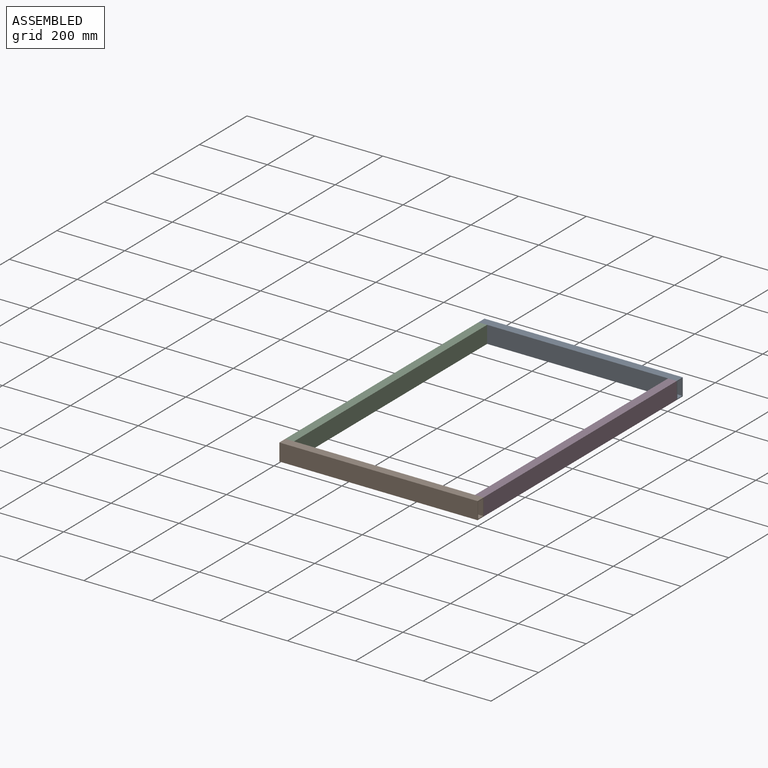
[diagram: assembled view]
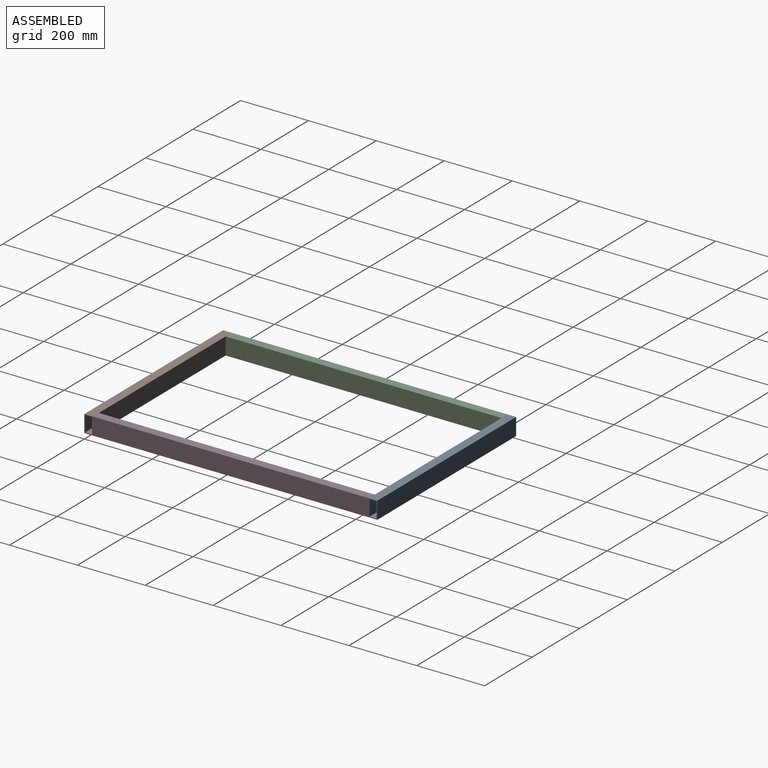
[diagram: assembled view, second angle]
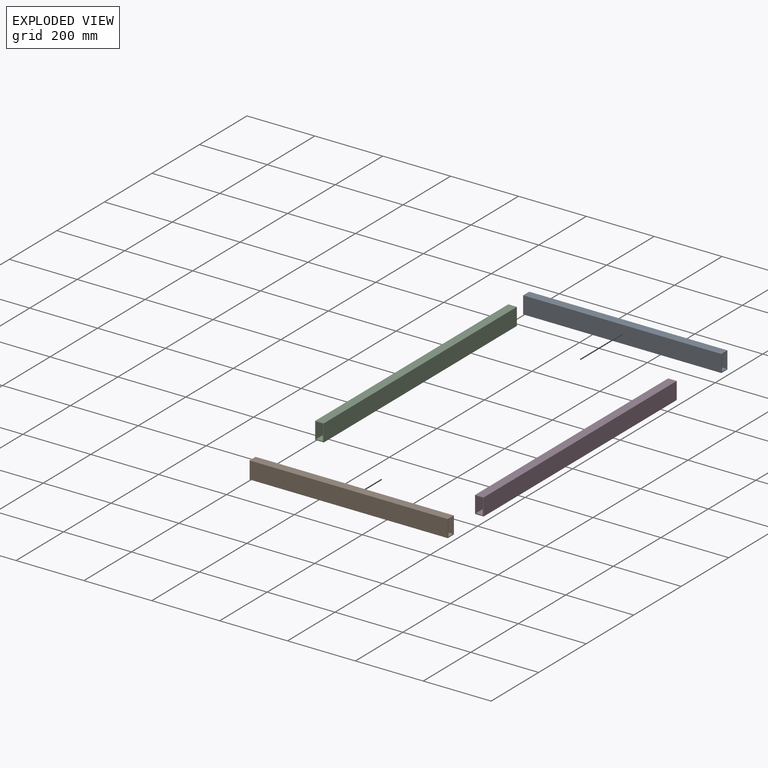
[diagram: exploded view]
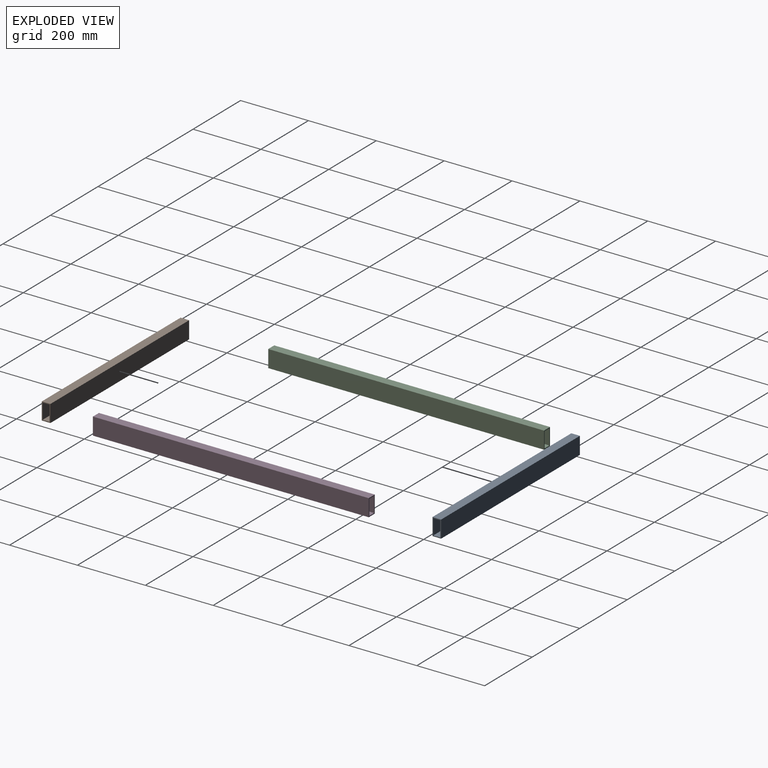
[diagram: exploded view, second angle]
ASSEMBLY  parts=4 mates=9
PART A: 10 faces, bbox 25.4x584.2x50.8 mm
  f0: plane 584.2x25.4mm, normal (0,0,-1), area 14838.7mm2, adj f1,f7,f8,f9
  f1: plane 584.2x50.8mm, normal (1,0,0), area 29677.4mm2, adj f0,f2,f8,f9
  f2: plane 584.2x25.4mm, normal (0,0,1), area 14838.7mm2, adj f1,f7,f8,f9
  f3: plane 584.2x20.32mm, normal (0,0,1), area 11870.9mm2, adj f4,f6,f8,f9
  f4: plane 584.2x45.72mm, normal (1,0,0), area 26709.6mm2, adj f3,f5,f8,f9
  f5: plane 584.2x20.32mm, normal (0,0,-1), area 11870.9mm2, adj f4,f6,f8,f9
  f6: plane 584.2x45.72mm, normal (-1,0,0), area 26709.6mm2, adj f3,f5,f8,f9
  f7: plane 584.2x50.8mm, normal (-1,0,0), area 29677.4mm2, adj f0,f2,f8,f9
  f8: plane 50.8x25.4mm, normal (0,-1,0), area 361.3mm2, adj f0,f1,f2,f3,f4,f5,f6,f7
  f9: plane 50.8x25.4mm, normal (0,1,0), area 361.3mm2, adj f0,f1,f2,f3,f4,f5,f6,f7
PART B: same geometry as A
PART C: 10 faces, bbox 25.4x812.8x50.8 mm
  f0: plane 812.8x25.4mm, normal (0,0,-1), area 20645.1mm2, adj f1,f7,f8,f9
  f1: plane 812.8x50.8mm, normal (1,0,0), area 41290.2mm2, adj f0,f2,f8,f9
  f2: plane 812.8x25.4mm, normal (0,0,1), area 20645.1mm2, adj f1,f7,f8,f9
  f3: plane 812.8x20.32mm, normal (0,0,1), area 16516.1mm2, adj f4,f6,f8,f9
  f4: plane 812.8x45.72mm, normal (1,0,0), area 37161.2mm2, adj f3,f5,f8,f9
  f5: plane 812.8x20.32mm, normal (0,0,-1), area 16516.1mm2, adj f4,f6,f8,f9
  f6: plane 812.8x45.72mm, normal (-1,0,0), area 37161.2mm2, adj f3,f5,f8,f9
  f7: plane 812.8x50.8mm, normal (-1,0,0), area 41290.2mm2, adj f0,f2,f8,f9
  f8: plane 50.8x25.4mm, normal (0,-1,0), area 361.3mm2, adj f0,f1,f2,f3,f4,f5,f6,f7
  f9: plane 50.8x25.4mm, normal (0,1,0), area 361.3mm2, adj f0,f1,f2,f3,f4,f5,f6,f7
PART D: same geometry as C
PLACE A rot(axis=(0.71,-0.71,0),180deg) t=(-292.1,850.9,25.4)mm
PLACE B rot(axis=(0,0,-1),90deg) t=(-292.1,12.7,25.4)mm
PLACE C rot(axis=(0,1,0),180deg) t=(-571.5,431.8,25.4)mm
PLACE D t=(-12.7,431.8,25.4)mm
MATE planar D.f1 <-> A.f8  axis (1,0,0) through (0,838.2,0)mm
MATE planar A.f1 <-> D.f9  axis (0,-1,0) through (0,838.2,0)mm
MATE planar A.f0 <-> D.f2  axis (0,0,1) through (0,838.2,50.8)mm
MATE planar D.f8 <-> B.f7  axis (0,-1,0) through (0,25.4,0)mm
MATE planar D.f2 <-> B.f2  axis (0,0,1) through (0,25.4,50.8)mm
MATE planar B.f7 <-> C.f8  axis (0,1,0) through (-584.2,25.4,50.8)mm
MATE planar C.f1 <-> B.f8  axis (-1,0,0) through (-584.2,25.4,0)mm
MATE planar D.f1 <-> B.f9  axis (1,0,0) through (0,25.4,0)mm
MATE planar C.f0 <-> B.f2  axis (0,0,1) through (-584.2,25.4,50.8)mm
